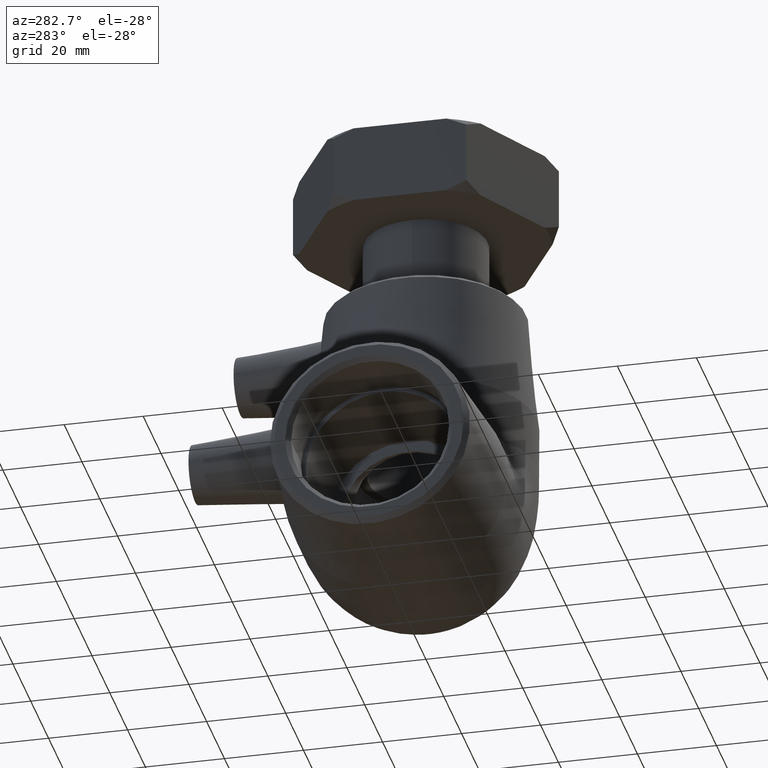
[diagram: clean part render]
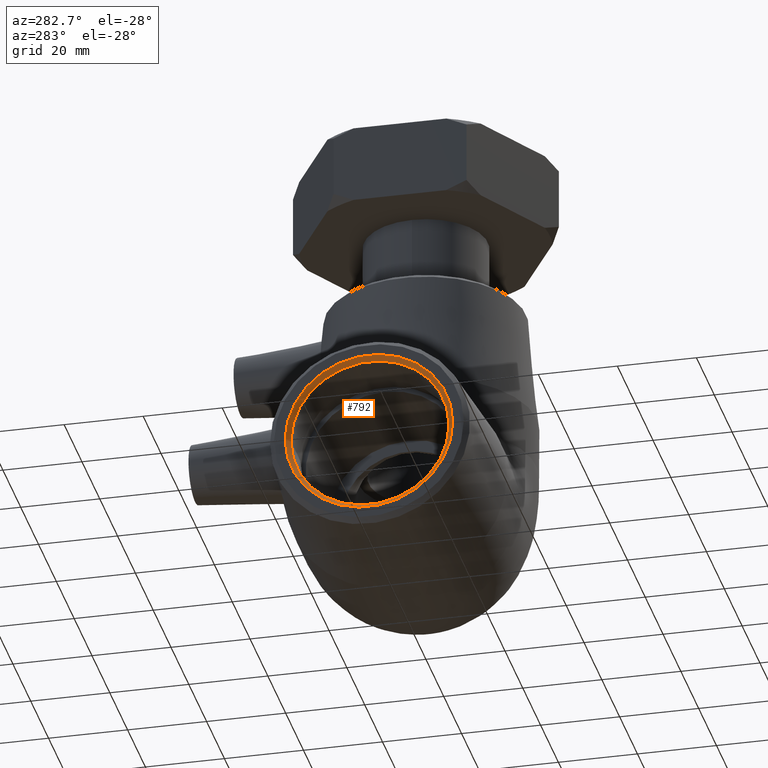
[diagram: same view with one face highlighted and labeled with its STEP entity id]
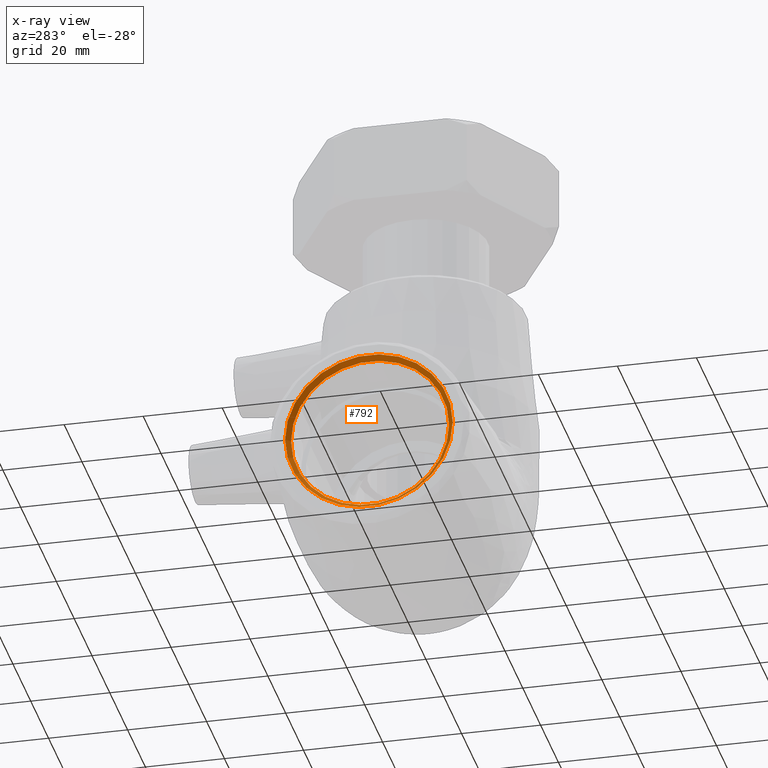
[diagram: x-ray of the same camera — body ghosted, the highlighted face saturated]
A machine part, auxiliary view. The second image highlights one B-rep face of the part: STEP entity #792.
The next image is the same camera in x-ray: the body ghosted, the highlighted face saturated — about 0% of this face is hidden behind the body in this view.
In plain terms, the highlighted conical surface has half-angle 45 deg.
Its self-contained STEP definition (entity closure, byte-faithful):
#125=FACE_BOUND('',#255,.T.);
#185=FACE_OUTER_BOUND('',#254,.T.);
#254=EDGE_LOOP('',(#672));
#255=EDGE_LOOP('',(#673));
#344=CIRCLE('',#879,20.);
#345=CIRCLE('',#880,21.2);
#420=VERTEX_POINT('',#1374);
#421=VERTEX_POINT('',#1376);
#516=EDGE_CURVE('',#420,#420,#344,.T.);
#517=EDGE_CURVE('',#421,#421,#345,.T.);
#672=ORIENTED_EDGE('',*,*,#516,.T.);
#673=ORIENTED_EDGE('',*,*,#517,.T.);
#758=CONICAL_SURFACE('',#878,20.6,45.);
#792=ADVANCED_FACE('',(#185,#125),#758,.F.);
#878=AXIS2_PLACEMENT_3D('',#1373,#1058,#1059);
#879=AXIS2_PLACEMENT_3D('',#1375,#1060,#1061);
#880=AXIS2_PLACEMENT_3D('',#1377,#1062,#1063);
#1058=DIRECTION('center_axis',(-1.,2.16840434497101E-18,0.));
#1059=DIRECTION('ref_axis',(-1.11578087653848E-18,-1.,0.));
#1060=DIRECTION('center_axis',(1.,-2.16840434497101E-18,0.));
#1061=DIRECTION('ref_axis',(0.,-1.,0.));
#1062=DIRECTION('center_axis',(-1.,2.16840434497101E-18,0.));
#1063=DIRECTION('ref_axis',(-2.16840434497101E-18,-1.,0.));
#1373=CARTESIAN_POINT('Origin',(-63.4,-1.30104260698261E-18,0.));
#1374=CARTESIAN_POINT('',(-62.8,20.,2.44929359829471E-15));
#1375=CARTESIAN_POINT('Origin',(-62.8,-2.60208521396521E-18,0.));
#1376=CARTESIAN_POINT('',(-64.,21.2,-2.59625121419239E-15));
#1377=CARTESIAN_POINT('Origin',(-64.,0.,0.));